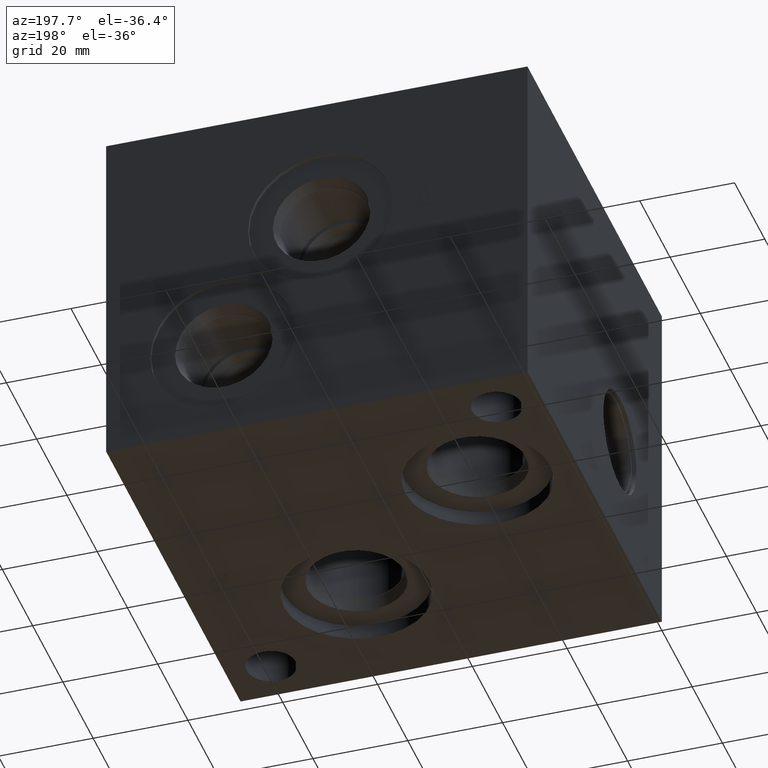
[diagram: clean part render]
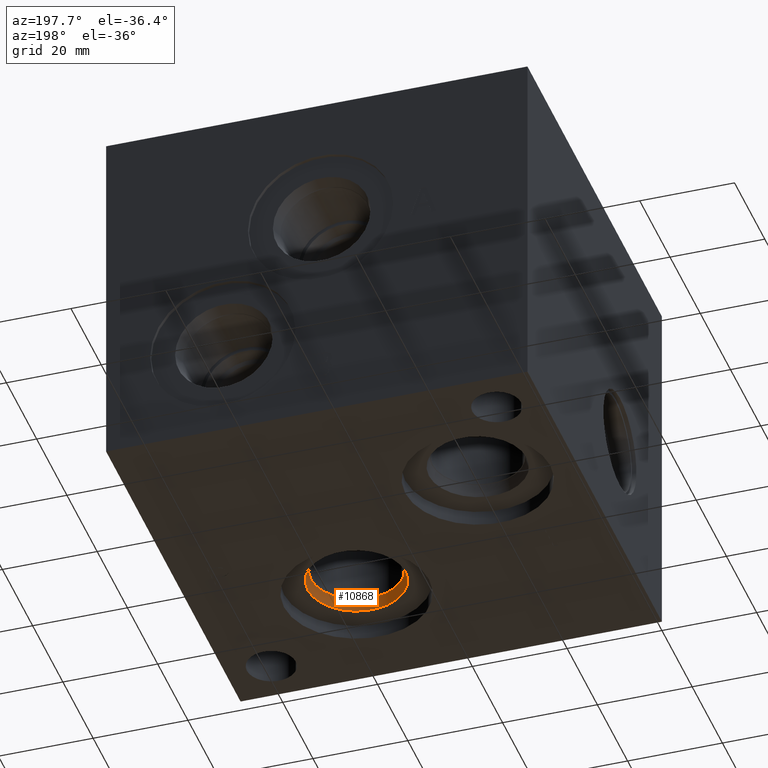
[diagram: same view with one face highlighted and labeled with its STEP entity id]
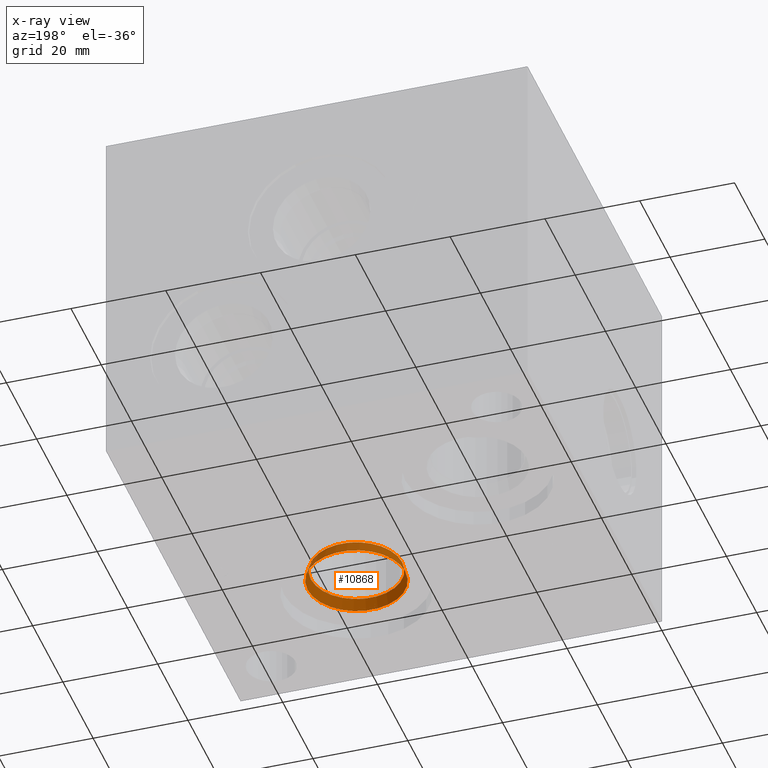
[diagram: x-ray of the same camera — body ghosted, the highlighted face saturated]
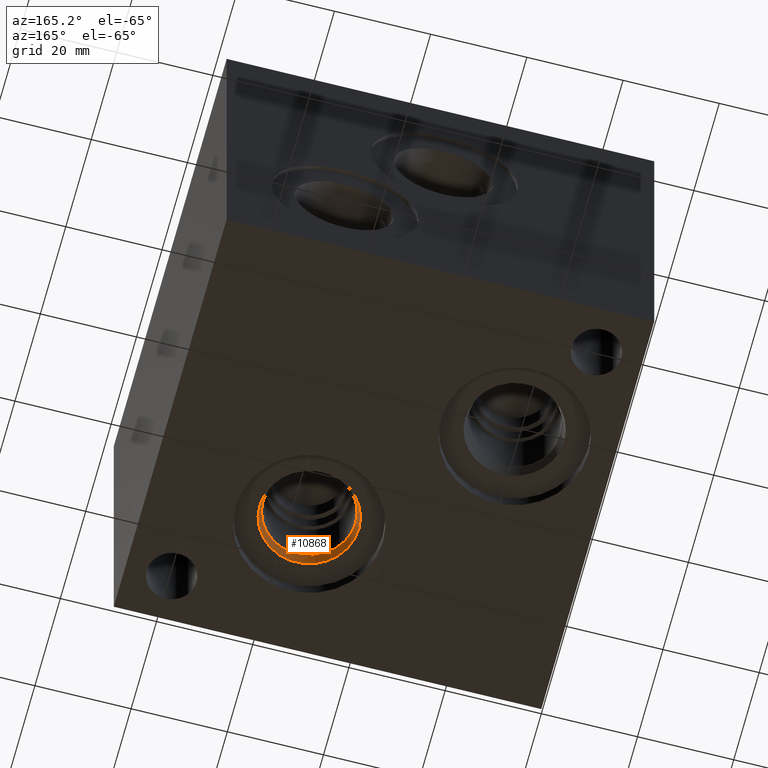
[diagram: same view with one face highlighted and labeled with its STEP entity id]
A machine part, auxiliary view. The second image highlights one B-rep face of the part: STEP entity #10868.
The next image is the same camera in x-ray: the body ghosted, the highlighted face saturated — about 0% of this face is hidden behind the body in this view.
A second angle (auxiliary view) of the same face is appended — the face is thin or edge-on in the first view.
In plain terms, the highlighted conical surface has half-angle 15.05 deg.
Its self-contained STEP definition (entity closure, byte-faithful):
#14=CONICAL_SURFACE('',#11304,9.96315000000001,0.262678410964687);
#119=CIRCLE('',#11302,10.2997);
#120=CIRCLE('',#11303,10.2997);
#121=CIRCLE('',#11305,9.6266);
#122=CIRCLE('',#11306,9.6266);
#1146=FACE_OUTER_BOUND('',#1758,.T.);
#1758=EDGE_LOOP('',(#9251,#9252,#9253,#9254,#9255,#9256));
#2818=LINE('',#18417,#3822);
#3822=VECTOR('',#13132,9.96315000000001);
#5068=VERTEX_POINT('',#18411);
#5069=VERTEX_POINT('',#18412);
#5070=VERTEX_POINT('',#18416);
#5071=VERTEX_POINT('',#18418);
#6514=EDGE_CURVE('',#5068,#5069,#119,.T.);
#6515=EDGE_CURVE('',#5069,#5068,#120,.T.);
#6516=EDGE_CURVE('',#5069,#5070,#2818,.T.);
#6517=EDGE_CURVE('',#5070,#5071,#121,.T.);
#6518=EDGE_CURVE('',#5071,#5070,#122,.T.);
#9251=ORIENTED_EDGE('',*,*,#6514,.F.);
#9252=ORIENTED_EDGE('',*,*,#6515,.F.);
#9253=ORIENTED_EDGE('',*,*,#6516,.T.);
#9254=ORIENTED_EDGE('',*,*,#6517,.T.);
#9255=ORIENTED_EDGE('',*,*,#6518,.T.);
#9256=ORIENTED_EDGE('',*,*,#6516,.F.);
#10868=ADVANCED_FACE('',(#1146),#14,.F.);
#11302=AXIS2_PLACEMENT_3D('',#18413,#13126,#13127);
#11303=AXIS2_PLACEMENT_3D('',#18414,#13128,#13129);
#11304=AXIS2_PLACEMENT_3D('',#18415,#13130,#13131);
#11305=AXIS2_PLACEMENT_3D('',#18419,#13133,#13134);
#11306=AXIS2_PLACEMENT_3D('',#18420,#13135,#13136);
#13126=DIRECTION('center_axis',(0.,0.,1.));
#13127=DIRECTION('ref_axis',(1.,0.,0.));
#13128=DIRECTION('center_axis',(0.,0.,1.));
#13129=DIRECTION('ref_axis',(1.,0.,0.));
#13130=DIRECTION('center_axis',(0.,0.,-1.));
#13131=DIRECTION('ref_axis',(1.,0.,0.));
#13132=DIRECTION('',(0.259668016178309,3.1800160485371E-17,0.965697945205446));
#13133=DIRECTION('center_axis',(0.,0.,1.));
#13134=DIRECTION('ref_axis',(1.,0.,0.));
#13135=DIRECTION('center_axis',(0.,0.,1.));
#13136=DIRECTION('ref_axis',(1.,0.,0.));
#18411=CARTESIAN_POINT('',(65.8749,27.7876,3.175));
#18412=CARTESIAN_POINT('',(45.2755,27.7876,3.175));
#18413=CARTESIAN_POINT('Origin',(55.5752,27.7876,3.175));
#18414=CARTESIAN_POINT('Origin',(55.5752,27.7876,3.175));
#18415=CARTESIAN_POINT('Origin',(55.5752,27.7876,4.42661985));
#18416=CARTESIAN_POINT('',(45.9486,27.7876,5.6782397));
#18417=CARTESIAN_POINT('',(45.61205,27.7876,4.42661985));
#18418=CARTESIAN_POINT('',(65.2018,27.7876,5.6782397));
#18419=CARTESIAN_POINT('Origin',(55.5752,27.7876,5.6782397));
#18420=CARTESIAN_POINT('Origin',(55.5752,27.7876,5.6782397));